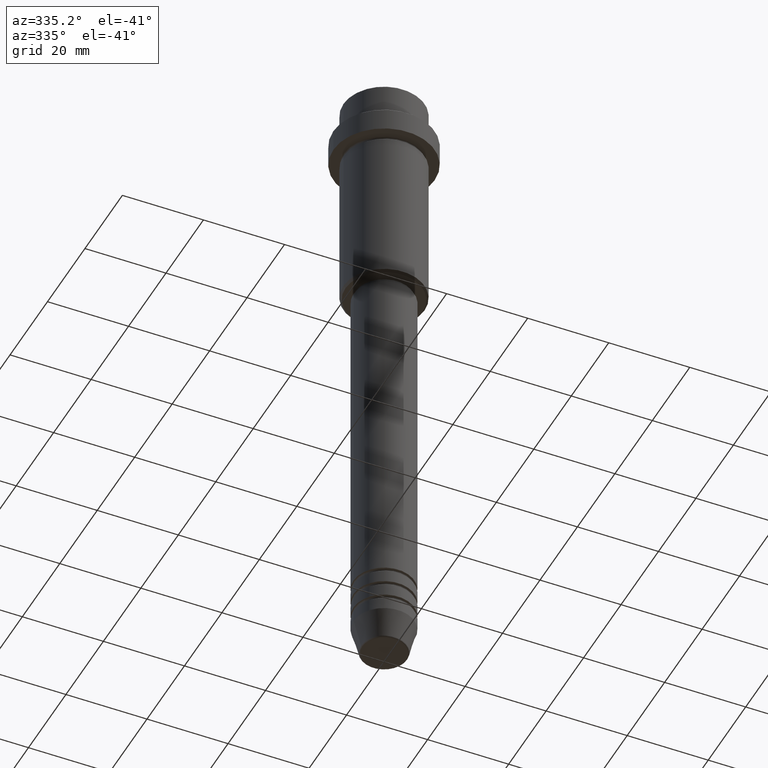
[diagram: clean part render]
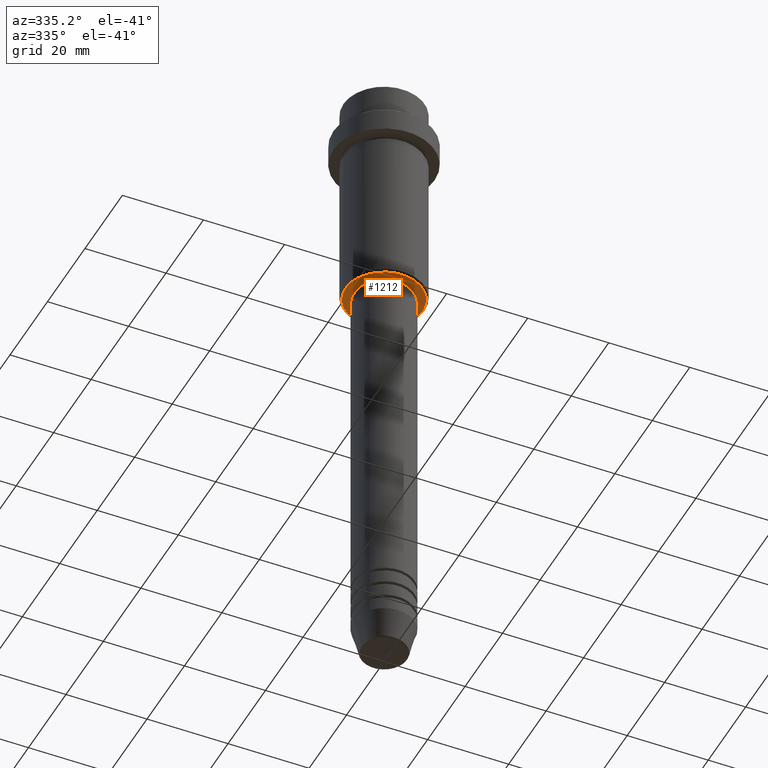
[diagram: same view with one face highlighted and labeled with its STEP entity id]
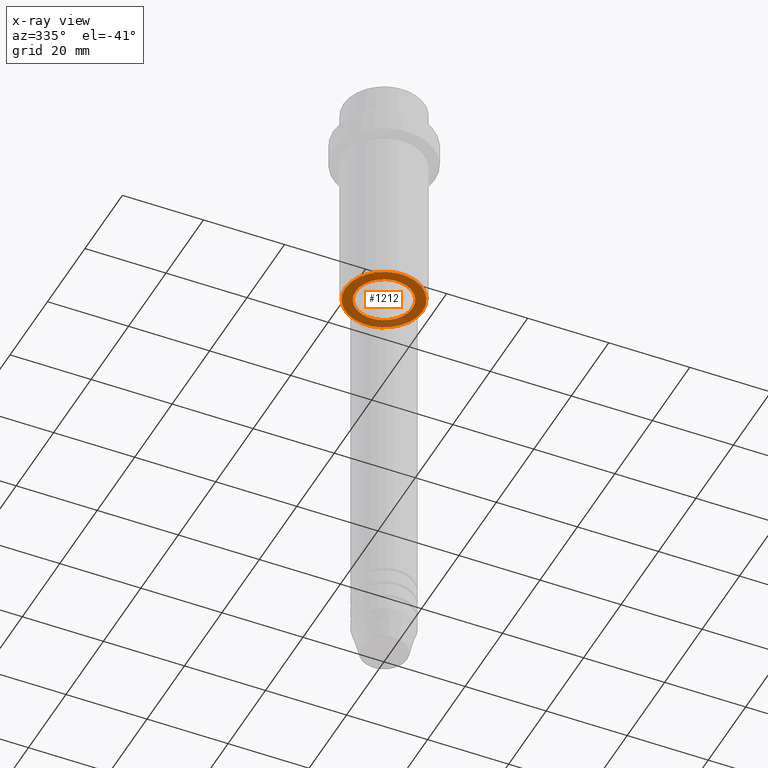
[diagram: x-ray of the same camera — body ghosted, the highlighted face saturated]
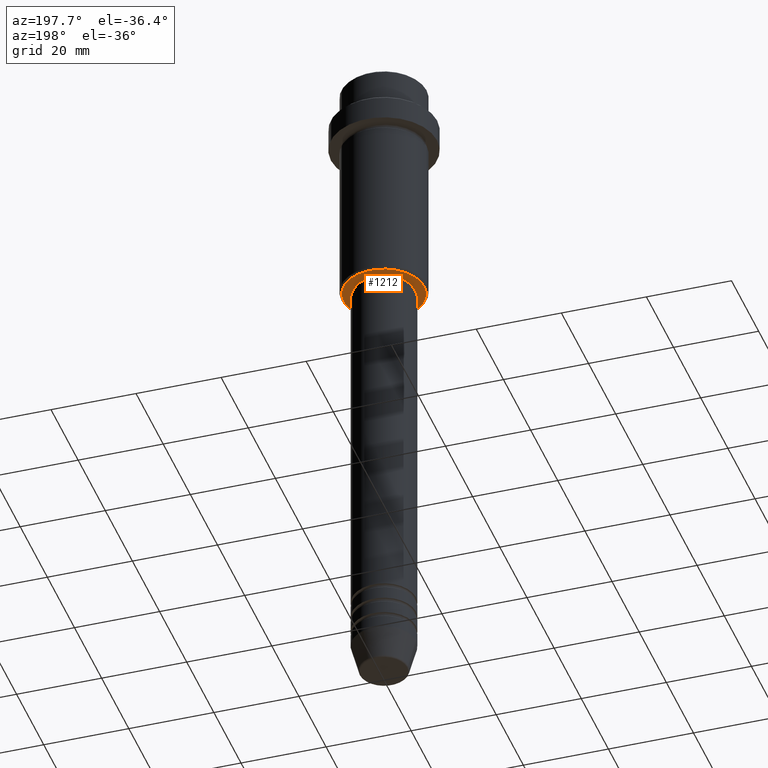
[diagram: same view with one face highlighted and labeled with its STEP entity id]
A machine part, auxiliary view. The second image highlights one B-rep face of the part: STEP entity #1212.
The next image is the same camera in x-ray: the body ghosted, the highlighted face saturated — about 19% of this face is hidden behind the body in this view.
A second angle (auxiliary view) of the same face is appended — the face is thin or edge-on in the first view.
In plain terms, the highlighted planar face has unit normal (0, 0, -1).
Its self-contained STEP definition (entity closure, byte-faithful):
#3 = CARTESIAN_POINT ( 'NONE',  ( 9.499999999999966249, 0.000000000000000000, -54.99999999999999289 ) ) ;
#8 = DIRECTION ( 'NONE',  ( -0.000000000000000000, -0.000000000000000000, 1.000000000000000000 ) ) ;
#34 = EDGE_CURVE ( 'NONE', #1228, #1119, #1256, .T. ) ;
#53 = EDGE_LOOP ( 'NONE', ( #1011, #737 ) ) ;
#90 = DIRECTION ( 'NONE',  ( -0.000000000000000000, -0.000000000000000000, 1.000000000000000000 ) ) ;
#128 = AXIS2_PLACEMENT_3D ( 'NONE', #1072, #90, #519 ) ;
#135 = DIRECTION ( 'NONE',  ( -1.000000000000000000, 0.000000000000000000, -0.000000000000000000 ) ) ;
#219 = DIRECTION ( 'NONE',  ( 1.000000000000000000, 0.000000000000000000, 0.000000000000000000 ) ) ;
#287 = EDGE_LOOP ( 'NONE', ( #1240, #1378 ) ) ;
#290 = CARTESIAN_POINT ( 'NONE',  ( 0.000000000000000000, 0.000000000000000000, -54.99999999999999289 ) ) ;
#348 = CARTESIAN_POINT ( 'NONE',  ( 0.000000000000000000, 10.00000000000000000, -54.99999999999999289 ) ) ;
#359 = FACE_OUTER_BOUND ( 'NONE', #53, .T. ) ;
#377 = CARTESIAN_POINT ( 'NONE',  ( 6.999999999999993783, 0.000000000000000000, -54.99999999999999289 ) ) ;
#519 = DIRECTION ( 'NONE',  ( 1.000000000000000000, 0.000000000000000000, 0.000000000000000000 ) ) ;
#588 = DIRECTION ( 'NONE',  ( 0.000000000000000000, 0.000000000000000000, -1.000000000000000000 ) ) ;
#608 = DIRECTION ( 'NONE',  ( -1.000000000000000000, 0.000000000000000000, 0.000000000000000000 ) ) ;
#614 = EDGE_CURVE ( 'NONE', #979, #1222, #974, .T. ) ;
#620 = AXIS2_PLACEMENT_3D ( 'NONE', #1286, #1261, #608 ) ;
#642 = CIRCLE ( 'NONE', #620, 9.499999999999966249 ) ;
#713 = AXIS2_PLACEMENT_3D ( 'NONE', #985, #8, #219 ) ;
#737 = ORIENTED_EDGE ( 'NONE', *, *, #34, .T. ) ;
#848 = AXIS2_PLACEMENT_3D ( 'NONE', #290, #1397, #971 ) ;
#855 = AXIS2_PLACEMENT_3D ( 'NONE', #348, #588, #135 ) ;
#898 = PLANE ( 'NONE',  #855 ) ;
#971 = DIRECTION ( 'NONE',  ( -1.000000000000000000, 0.000000000000000000, 0.000000000000000000 ) ) ;
#974 = CIRCLE ( 'NONE', #128, 6.999999999999993783 ) ;
#979 = VERTEX_POINT ( 'NONE', #377 ) ;
#985 = CARTESIAN_POINT ( 'NONE',  ( 0.000000000000000000, 0.000000000000000000, -54.99999999999999289 ) ) ;
#1011 = ORIENTED_EDGE ( 'NONE', *, *, #1333, .T. ) ;
#1019 = CARTESIAN_POINT ( 'NONE',  ( -9.499999999999966249, 1.194030629168667103E-15, -54.99999999999999289 ) ) ;
#1072 = CARTESIAN_POINT ( 'NONE',  ( 0.000000000000000000, 0.000000000000000000, -54.99999999999999289 ) ) ;
#1087 = CIRCLE ( 'NONE', #713, 6.999999999999993783 ) ;
#1119 = VERTEX_POINT ( 'NONE', #3 ) ;
#1120 = EDGE_CURVE ( 'NONE', #1222, #979, #1087, .T. ) ;
#1212 = ADVANCED_FACE ( 'NONE', ( #359, #1227 ), #898, .T. ) ;
#1222 = VERTEX_POINT ( 'NONE', #1235 ) ;
#1227 = FACE_BOUND ( 'NONE', #287, .T. ) ;
#1228 = VERTEX_POINT ( 'NONE', #1019 ) ;
#1235 = CARTESIAN_POINT ( 'NONE',  ( -6.999999999999993783, 8.572527594031465301E-16, -54.99999999999999289 ) ) ;
#1240 = ORIENTED_EDGE ( 'NONE', *, *, #614, .T. ) ;
#1256 = CIRCLE ( 'NONE', #848, 9.499999999999966249 ) ;
#1261 = DIRECTION ( 'NONE',  ( 0.000000000000000000, 0.000000000000000000, -1.000000000000000000 ) ) ;
#1286 = CARTESIAN_POINT ( 'NONE',  ( 0.000000000000000000, 0.000000000000000000, -54.99999999999999289 ) ) ;
#1333 = EDGE_CURVE ( 'NONE', #1119, #1228, #642, .T. ) ;
#1378 = ORIENTED_EDGE ( 'NONE', *, *, #1120, .T. ) ;
#1397 = DIRECTION ( 'NONE',  ( 0.000000000000000000, 0.000000000000000000, -1.000000000000000000 ) ) ;